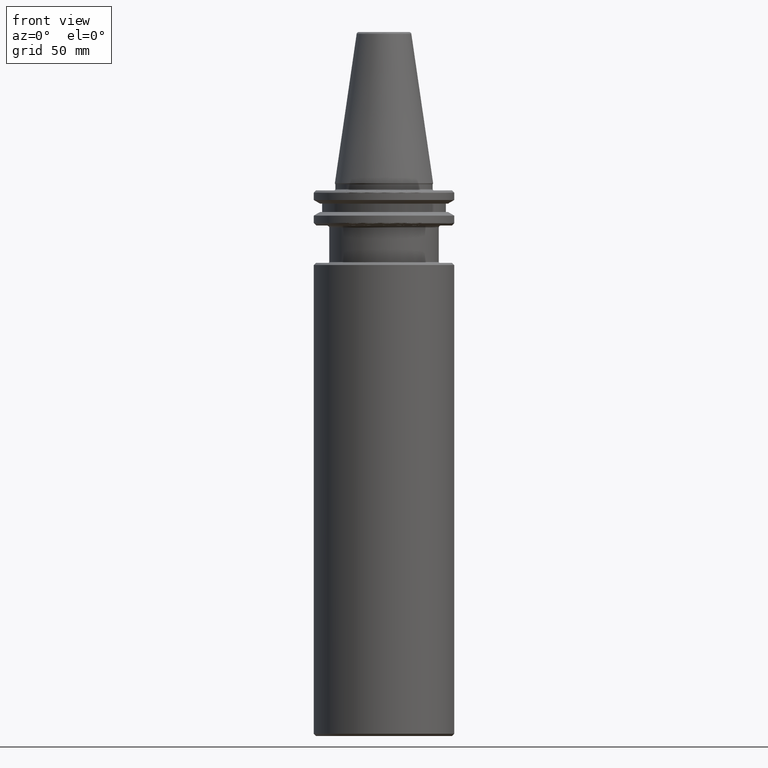
[diagram: clean part render]
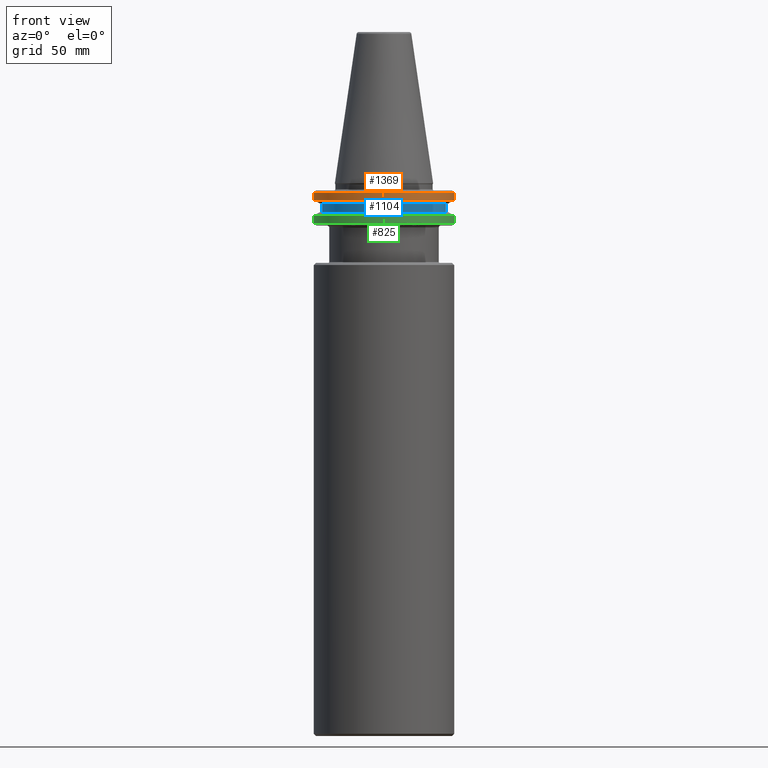
[diagram: same view with three faces highlighted in distinct colors, each labeled with its STEP entity id]
A machine part, front view with three faces highlighted in distinct colors.
Their STEP definitions:

[orange] entity #1369 — the highlighted cylindrical surface (partial cylindrical patch) has radius 31.75 mm, axis along (0, 0, 1).
#6 = EDGE_CURVE ( 'NONE', #65, #3280, #510, .T. ) ;
#65 = VERTEX_POINT ( 'NONE', #2348 ) ;
#165 = FACE_OUTER_BOUND ( 'NONE', #1966, .T. ) ;
#173 = CARTESIAN_POINT ( 'NONE',  ( -31.75000000000000000, 3.888253587292846500E-015, -4.365685424949236700 ) ) ;
#307 = ORIENTED_EDGE ( 'NONE', *, *, #2342, .F. ) ;
#336 = EDGE_CURVE ( 'NONE', #1031, #2242, #757, .T. ) ;
#347 = CARTESIAN_POINT ( 'NONE',  ( 0.0000000000000000000, 0.0000000000000000000, -4.365685424949236700 ) ) ;
#412 = EDGE_CURVE ( 'NONE', #65, #2495, #2666, .T. ) ;
#510 = CIRCLE ( 'NONE', #3056, 31.75000000000000000 ) ;
#521 = VECTOR ( 'NONE', #2624, 1000.000000000000000 ) ;
#546 = ORIENTED_EDGE ( 'NONE', *, *, #336, .F. ) ;
#623 = DIRECTION ( 'NONE',  ( 0.0000000000000000000, 0.0000000000000000000, 1.000000000000000000 ) ) ;
#757 = CIRCLE ( 'NONE', #2108, 31.75000000000000000 ) ;
#797 = CARTESIAN_POINT ( 'NONE',  ( 0.0000000000000000000, 0.0000000000000000000, 113.5216080541959500 ) ) ;
#1031 = VERTEX_POINT ( 'NONE', #173 ) ;
#1098 = CARTESIAN_POINT ( 'NONE',  ( 31.75000000000000000, 0.0000000000000000000, -4.365685424949236700 ) ) ;
#1159 = CIRCLE ( 'NONE', #1617, 31.75000000000000000 ) ;
#1172 = DIRECTION ( 'NONE',  ( 0.0000000000000000000, 0.0000000000000000000, 1.000000000000000000 ) ) ;
#1255 = AXIS2_PLACEMENT_3D ( 'NONE', #2178, #2173, #2168 ) ;
#1264 = ORIENTED_EDGE ( 'NONE', *, *, #6, .F. ) ;
#1369 = ADVANCED_FACE ( 'NONE', ( #165 ), #2174, .T. ) ;
#1398 = AXIS2_PLACEMENT_3D ( 'NONE', #797, #623, #2865 ) ;
#1415 = DIRECTION ( 'NONE',  ( 1.000000000000000000, 0.0000000000000000000, 0.0000000000000000000 ) ) ;
#1418 = DIRECTION ( 'NONE',  ( -0.0000000000000000000, -0.0000000000000000000, 1.000000000000000000 ) ) ;
#1419 = DIRECTION ( 'NONE',  ( 1.000000000000000000, 0.0000000000000000000, -5.463695987328526400E-017 ) ) ;
#1510 = CARTESIAN_POINT ( 'NONE',  ( 31.75000000000000000, 0.0000000000000000000, 113.5216080541959500 ) ) ;
#1605 = ORIENTED_EDGE ( 'NONE', *, *, #2249, .T. ) ;
#1608 = EDGE_CURVE ( 'NONE', #3280, #1031, #1927, .T. ) ;
#1617 = AXIS2_PLACEMENT_3D ( 'NONE', #1975, #1967, #1962 ) ;
#1927 = LINE ( 'NONE', #2615, #521 ) ;
#1962 = DIRECTION ( 'NONE',  ( 1.000000000000000000, 0.0000000000000000000, 0.0000000000000000000 ) ) ;
#1966 = EDGE_LOOP ( 'NONE', ( #2827, #1264, #2536, #307, #1605, #546 ) ) ;
#1967 = DIRECTION ( 'NONE',  ( -0.0000000000000000000, -0.0000000000000000000, 1.000000000000000000 ) ) ;
#1975 = CARTESIAN_POINT ( 'NONE',  ( 0.0000000000000000000, 0.0000000000000000000, -4.365685424949236700 ) ) ;
#1991 = VECTOR ( 'NONE', #1172, 1000.000000000000000 ) ;
#2060 = CARTESIAN_POINT ( 'NONE',  ( 30.56296919415016000, -8.600431037885734000, -4.365685424949250000 ) ) ;
#2083 = CARTESIAN_POINT ( 'NONE',  ( 0.0000000000000000000, 0.0000000000000000000, -7.578163357943284800 ) ) ;
#2108 = AXIS2_PLACEMENT_3D ( 'NONE', #347, #1418, #1415 ) ;
#2168 = DIRECTION ( 'NONE',  ( 1.000000000000000000, 0.0000000000000000000, 0.0000000000000000000 ) ) ;
#2173 = DIRECTION ( 'NONE',  ( -0.0000000000000000000, -0.0000000000000000000, -1.000000000000000000 ) ) ;
#2174 = CYLINDRICAL_SURFACE ( 'NONE', #1398, 31.75000000000000000 ) ;
#2178 = CARTESIAN_POINT ( 'NONE',  ( 0.0000000000000000000, 0.0000000000000000000, -4.365685424949236700 ) ) ;
#2242 = VERTEX_POINT ( 'NONE', #2247 ) ;
#2247 = CARTESIAN_POINT ( 'NONE',  ( -30.52966748735167000, -8.717907037342303800, -4.365685424949250000 ) ) ;
#2249 = EDGE_CURVE ( 'NONE', #2337, #2242, #3235, .T. ) ;
#2250 = DIRECTION ( 'NONE',  ( -0.0000000000000000000, -0.0000000000000000000, -1.000000000000000000 ) ) ;
#2335 = CARTESIAN_POINT ( 'NONE',  ( -31.75000000000000000, 3.888253587292846500E-015, -7.578163357943284800 ) ) ;
#2337 = VERTEX_POINT ( 'NONE', #2060 ) ;
#2342 = EDGE_CURVE ( 'NONE', #2337, #2495, #1159, .T. ) ;
#2348 = CARTESIAN_POINT ( 'NONE',  ( 31.75000000000000000, 0.0000000000000000000, -7.578163357943286500 ) ) ;
#2495 = VERTEX_POINT ( 'NONE', #1098 ) ;
#2536 = ORIENTED_EDGE ( 'NONE', *, *, #412, .T. ) ;
#2615 = CARTESIAN_POINT ( 'NONE',  ( -31.75000000000000000, 3.888253587292846500E-015, 113.5216080541959500 ) ) ;
#2624 = DIRECTION ( 'NONE',  ( 0.0000000000000000000, 0.0000000000000000000, 1.000000000000000000 ) ) ;
#2666 = LINE ( 'NONE', #1510, #1991 ) ;
#2827 = ORIENTED_EDGE ( 'NONE', *, *, #1608, .F. ) ;
#2865 = DIRECTION ( 'NONE',  ( 1.000000000000000000, 0.0000000000000000000, 0.0000000000000000000 ) ) ;
#3056 = AXIS2_PLACEMENT_3D ( 'NONE', #2083, #2250, #1419 ) ;
#3235 = CIRCLE ( 'NONE', #1255, 31.75000000000000000 ) ;
#3280 = VERTEX_POINT ( 'NONE', #2335 ) ;

[blue] entity #1104 — the highlighted cylindrical surface (partial cylindrical patch) has radius 28 mm, axis along (0, 0, 1).
#152 = DIRECTION ( 'NONE',  ( 1.000000000000000000, 0.0000000000000000000, 0.0000000000000000000 ) ) ;
#153 = CARTESIAN_POINT ( 'NONE',  ( -28.00000000000000000, 3.429011037612589300E-015, -9.199999999999999300 ) ) ;
#155 = DIRECTION ( 'NONE',  ( 0.0000000000000000000, 0.0000000000000000000, 1.000000000000000000 ) ) ;
#158 = CARTESIAN_POINT ( 'NONE',  ( 0.0000000000000000000, 0.0000000000000000000, -13.00000000000001100 ) ) ;
#225 = EDGE_LOOP ( 'NONE', ( #1568, #1902, #809, #763 ) ) ;
#700 = LINE ( 'NONE', #3178, #2091 ) ;
#763 = ORIENTED_EDGE ( 'NONE', *, *, #1269, .T. ) ;
#809 = ORIENTED_EDGE ( 'NONE', *, *, #1657, .T. ) ;
#1012 = VERTEX_POINT ( 'NONE', #153 ) ;
#1029 = FACE_OUTER_BOUND ( 'NONE', #225, .T. ) ;
#1099 = CIRCLE ( 'NONE', #1219, 28.00000000000000000 ) ;
#1104 = ADVANCED_FACE ( 'NONE', ( #1029 ), #2259, .T. ) ;
#1217 = VECTOR ( 'NONE', #2338, 1000.000000000000000 ) ;
#1219 = AXIS2_PLACEMENT_3D ( 'NONE', #2923, #2942, #2949 ) ;
#1269 = EDGE_CURVE ( 'NONE', #1745, #1012, #1099, .T. ) ;
#1278 = CIRCLE ( 'NONE', #2619, 28.00000000000000000 ) ;
#1432 = AXIS2_PLACEMENT_3D ( 'NONE', #2438, #2399, #2448 ) ;
#1492 = EDGE_CURVE ( 'NONE', #2258, #1012, #700, .T. ) ;
#1568 = ORIENTED_EDGE ( 'NONE', *, *, #1492, .F. ) ;
#1657 = EDGE_CURVE ( 'NONE', #3019, #1745, #2444, .T. ) ;
#1745 = VERTEX_POINT ( 'NONE', #2240 ) ;
#1902 = ORIENTED_EDGE ( 'NONE', *, *, #2629, .T. ) ;
#2091 = VECTOR ( 'NONE', #3121, 1000.000000000000000 ) ;
#2210 = CARTESIAN_POINT ( 'NONE',  ( -28.00000000000000000, 3.429011037612589300E-015, -13.00000000000001100 ) ) ;
#2240 = CARTESIAN_POINT ( 'NONE',  ( 28.00000000000000000, 0.0000000000000000000, -9.199999999999999300 ) ) ;
#2258 = VERTEX_POINT ( 'NONE', #2210 ) ;
#2259 = CYLINDRICAL_SURFACE ( 'NONE', #1432, 28.00000000000000000 ) ;
#2330 = CARTESIAN_POINT ( 'NONE',  ( 28.00000000000000000, 0.0000000000000000000, 113.5216080541959500 ) ) ;
#2338 = DIRECTION ( 'NONE',  ( 0.0000000000000000000, 0.0000000000000000000, 1.000000000000000000 ) ) ;
#2399 = DIRECTION ( 'NONE',  ( 0.0000000000000000000, 0.0000000000000000000, 1.000000000000000000 ) ) ;
#2438 = CARTESIAN_POINT ( 'NONE',  ( 0.0000000000000000000, 0.0000000000000000000, 113.5216080541959500 ) ) ;
#2444 = LINE ( 'NONE', #2330, #1217 ) ;
#2448 = DIRECTION ( 'NONE',  ( 1.000000000000000000, 0.0000000000000000000, 0.0000000000000000000 ) ) ;
#2530 = CARTESIAN_POINT ( 'NONE',  ( 28.00000000000000000, 0.0000000000000000000, -13.00000000000001100 ) ) ;
#2619 = AXIS2_PLACEMENT_3D ( 'NONE', #158, #155, #152 ) ;
#2629 = EDGE_CURVE ( 'NONE', #2258, #3019, #1278, .T. ) ;
#2923 = CARTESIAN_POINT ( 'NONE',  ( 0.0000000000000000000, 0.0000000000000000000, -9.199999999999999300 ) ) ;
#2942 = DIRECTION ( 'NONE',  ( -0.0000000000000000000, -0.0000000000000000000, -1.000000000000000000 ) ) ;
#2949 = DIRECTION ( 'NONE',  ( 1.000000000000000000, 0.0000000000000000000, 0.0000000000000000000 ) ) ;
#3019 = VERTEX_POINT ( 'NONE', #2530 ) ;
#3121 = DIRECTION ( 'NONE',  ( 0.0000000000000000000, 0.0000000000000000000, 1.000000000000000000 ) ) ;
#3178 = CARTESIAN_POINT ( 'NONE',  ( -28.00000000000000000, 3.429011037612589300E-015, 113.5216080541959500 ) ) ;

[green] entity #825 — the highlighted cylindrical surface (partial cylindrical patch) has radius 31.75 mm, axis along (0, 0, 1).
#248 = LINE ( 'NONE', #2478, #876 ) ;
#339 = CARTESIAN_POINT ( 'NONE',  ( 0.0000000000000000000, 0.0000000000000000000, 113.5216080541959500 ) ) ;
#470 = EDGE_CURVE ( 'NONE', #1383, #2555, #582, .T. ) ;
#582 = CIRCLE ( 'NONE', #3175, 31.75000000000000000 ) ;
#607 = AXIS2_PLACEMENT_3D ( 'NONE', #1224, #1235, #1242 ) ;
#704 = ORIENTED_EDGE ( 'NONE', *, *, #3105, .F. ) ;
#749 = DIRECTION ( 'NONE',  ( 1.000000000000000000, 0.0000000000000000000, 0.0000000000000000000 ) ) ;
#779 = EDGE_CURVE ( 'NONE', #1383, #1392, #1061, .T. ) ;
#825 = ADVANCED_FACE ( 'NONE', ( #2293 ), #2896, .T. ) ;
#876 = VECTOR ( 'NONE', #2566, 1000.000000000000000 ) ;
#924 = VERTEX_POINT ( 'NONE', #1947 ) ;
#937 = CARTESIAN_POINT ( 'NONE',  ( -31.75000000000000000, 3.888253587292846500E-015, -14.62183664205671200 ) ) ;
#992 = DIRECTION ( 'NONE',  ( 1.000000000000000000, 0.0000000000000000000, 0.0000000000000000000 ) ) ;
#995 = CARTESIAN_POINT ( 'NONE',  ( 30.56296919415016300, -8.600431037885734000, -17.93431457505077700 ) ) ;
#1023 = CARTESIAN_POINT ( 'NONE',  ( 31.75000000000000000, 0.0000000000000000000, -17.93431457505076300 ) ) ;
#1061 = CIRCLE ( 'NONE', #3119, 31.75000000000000000 ) ;
#1109 = EDGE_CURVE ( 'NONE', #1386, #1392, #3029, .T. ) ;
#1130 = EDGE_CURVE ( 'NONE', #1386, #1385, #248, .T. ) ;
#1166 = EDGE_CURVE ( 'NONE', #2555, #924, #1660, .T. ) ;
#1192 = CARTESIAN_POINT ( 'NONE',  ( -31.75000000000000000, 3.888253587292846500E-015, -17.93431457505076300 ) ) ;
#1224 = CARTESIAN_POINT ( 'NONE',  ( 0.0000000000000000000, 0.0000000000000000000, -14.62183664205671200 ) ) ;
#1232 = DIRECTION ( 'NONE',  ( 0.0000000000000000000, 0.0000000000000000000, 1.000000000000000000 ) ) ;
#1235 = DIRECTION ( 'NONE',  ( -0.0000000000000000000, -0.0000000000000000000, 1.000000000000000000 ) ) ;
#1242 = DIRECTION ( 'NONE',  ( -1.000000000000000000, 0.0000000000000000000, -5.463695987328526400E-017 ) ) ;
#1283 = CARTESIAN_POINT ( 'NONE',  ( 0.0000000000000000000, 0.0000000000000000000, -17.93431457505076000 ) ) ;
#1321 = CARTESIAN_POINT ( 'NONE',  ( 0.0000000000000000000, 0.0000000000000000000, -17.93431457505076300 ) ) ;
#1383 = VERTEX_POINT ( 'NONE', #995 ) ;
#1385 = VERTEX_POINT ( 'NONE', #937 ) ;
#1386 = VERTEX_POINT ( 'NONE', #1192 ) ;
#1392 = VERTEX_POINT ( 'NONE', #2351 ) ;
#1436 = AXIS2_PLACEMENT_3D ( 'NONE', #2538, #2165, #2543 ) ;
#1530 = DIRECTION ( 'NONE',  ( 1.000000000000000000, 0.0000000000000000000, 0.0000000000000000000 ) ) ;
#1660 = LINE ( 'NONE', #2652, #2562 ) ;
#1684 = DIRECTION ( 'NONE',  ( -0.0000000000000000000, -0.0000000000000000000, 1.000000000000000000 ) ) ;
#1737 = ORIENTED_EDGE ( 'NONE', *, *, #779, .F. ) ;
#1750 = CIRCLE ( 'NONE', #607, 31.75000000000000000 ) ;
#1796 = DIRECTION ( 'NONE',  ( -0.0000000000000000000, -0.0000000000000000000, -1.000000000000000000 ) ) ;
#1947 = CARTESIAN_POINT ( 'NONE',  ( 31.75000000000000000, 0.0000000000000000000, -14.62183664205671200 ) ) ;
#2039 = ORIENTED_EDGE ( 'NONE', *, *, #1166, .T. ) ;
#2165 = DIRECTION ( 'NONE',  ( -0.0000000000000000000, -0.0000000000000000000, 1.000000000000000000 ) ) ;
#2293 = FACE_OUTER_BOUND ( 'NONE', #2920, .T. ) ;
#2351 = CARTESIAN_POINT ( 'NONE',  ( -30.52966748735167000, -8.717907037342300200, -17.93431457505079200 ) ) ;
#2478 = CARTESIAN_POINT ( 'NONE',  ( -31.75000000000000000, 3.888253587292846500E-015, 113.5216080541959500 ) ) ;
#2538 = CARTESIAN_POINT ( 'NONE',  ( 0.0000000000000000000, 0.0000000000000000000, -17.93431457505076300 ) ) ;
#2543 = DIRECTION ( 'NONE',  ( 1.000000000000000000, 0.0000000000000000000, 0.0000000000000000000 ) ) ;
#2555 = VERTEX_POINT ( 'NONE', #1023 ) ;
#2562 = VECTOR ( 'NONE', #2640, 1000.000000000000000 ) ;
#2566 = DIRECTION ( 'NONE',  ( 0.0000000000000000000, 0.0000000000000000000, 1.000000000000000000 ) ) ;
#2640 = DIRECTION ( 'NONE',  ( 0.0000000000000000000, 0.0000000000000000000, 1.000000000000000000 ) ) ;
#2652 = CARTESIAN_POINT ( 'NONE',  ( 31.75000000000000000, 0.0000000000000000000, 113.5216080541959500 ) ) ;
#2661 = ORIENTED_EDGE ( 'NONE', *, *, #470, .T. ) ;
#2677 = ORIENTED_EDGE ( 'NONE', *, *, #1130, .F. ) ;
#2763 = ORIENTED_EDGE ( 'NONE', *, *, #1109, .T. ) ;
#2896 = CYLINDRICAL_SURFACE ( 'NONE', #2950, 31.75000000000000000 ) ;
#2920 = EDGE_LOOP ( 'NONE', ( #2677, #2763, #1737, #2661, #2039, #704 ) ) ;
#2950 = AXIS2_PLACEMENT_3D ( 'NONE', #339, #1232, #1530 ) ;
#3029 = CIRCLE ( 'NONE', #1436, 31.75000000000000000 ) ;
#3105 = EDGE_CURVE ( 'NONE', #1385, #924, #1750, .T. ) ;
#3119 = AXIS2_PLACEMENT_3D ( 'NONE', #1283, #1796, #992 ) ;
#3175 = AXIS2_PLACEMENT_3D ( 'NONE', #1321, #1684, #749 ) ;